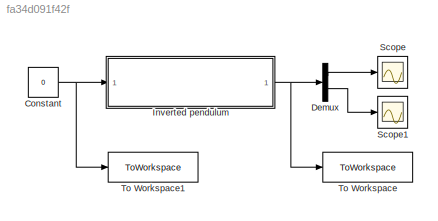
MODEL slx_fa34d091f42f
KIND model
CONFIG AbsTol = auto
CONFIG EnableMultiTasking = off
CONFIG FixedStep = 0.01
CONFIG MaxStep = auto
CONFIG MinStep = auto
CONFIG RelTol = 1e-3
CONFIG SampleTimeConstraint = Unconstrained
CONFIG SolverName = FixedStepAuto
CONFIG StartTime = 0.0
CONFIG StopTime = 20
WORKSPACE source: mxarray member
WORKSPACE M = 2.4
WORKSPACE dtheta0 = 0
WORKSPACE dx0 = 0
WORKSPACE g = 9.8
WORKSPACE l = 0.36
WORKSPACE m = 0.23
WORKSPACE theta0 = 10
WORKSPACE x0 = 0
BLOCK [Constant] Constant
  Value = 0
BLOCK [Demux] Demux
  Outputs = 2
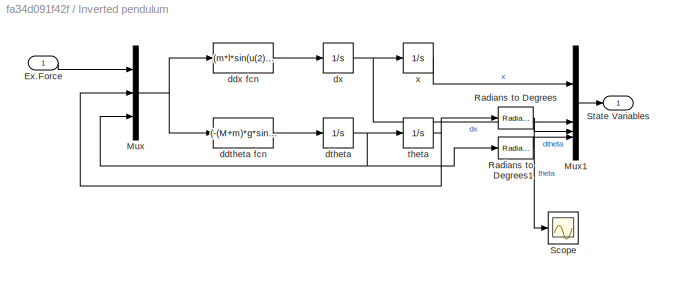
BLOCK [SubSystem] Inverted pendulum
BLOCK [Inport] Inverted pendulum/Ex.Force
BLOCK [Mux] Inverted pendulum/Mux
  DisplayOption = bar
  Inputs = 3
BLOCK [Mux] Inverted pendulum/Mux1
  DisplayOption = bar
BLOCK [Reference] Inverted pendulum/Radians to Degrees  REF=simulink_extras/Transformations/Radians
to Degrees
  SourceBlock = simulink_extras/Transformations/Radians\nto Degrees
  SourceType = RadiansToDegrees
BLOCK [Reference] Inverted pendulum/Radians to Degrees1  REF=simulink_extras/Transformations/Radians
to Degrees
  SourceBlock = simulink_extras/Transformations/Radians\nto Degrees
  SourceType = RadiansToDegrees
BLOCK [Scope] Inverted pendulum/Scope
  ActiveDisplayYMaximum = 363.79002341167381
  ActiveDisplayYMinimum = 10.426959122130228
  DataLoggingVariableName = ScopeData2
  Floating = off
  GraphicalSettings = {"AxesScalingProperties":{"AlignXAxis":"Center","AlignYAxis":"Center","AutoScaleXAxisLimits":false,"AxesScaling":"Manual","AxesScalingNumUpdates":10,"ExpandOnly":true,"ScaleAxesLimitsAtStop":false,"XAxisDataRange":100,"YAxisDataRange":80},"DisplayProperties":{"ColorOrder":["auto","auto","auto","auto","auto","auto","auto","auto","auto","auto","auto","auto","auto","auto","auto","auto","auto","auto",...<+1900ch>
  MultipleDisplayCache = [{"MaxYLimMag":392.48617441917884,"MaxYLimReal":363.79002341167381,"MinYLimMag":0,"MinYLimReal":10.426959122130228,"PlotAsMagnitudePhase":false,"ShowGrid":true,"ShowLegend":false,"Title":"%<SignalLabel>","YLabel":""}]
  NumInputPorts = 1
  ScopeFrameLocation = window
  WasSavedAsWebScope = on
  WindowPosition = [488.000000,222.000000,560.000000,420.000000,]
BLOCK [Outport] Inverted pendulum/State Variables
BLOCK [Fcn] Inverted pendulum/ddtheta fcn
  Expr = (-(M+m)*g*sin(u(2)) + m*l*cos(u(2))*sin(u(2))*u(3)^2 + u*cos(u(1)) )/(m*l*cos(u(2))^2 - (M+m)*l)
BLOCK [Fcn] Inverted pendulum/ddx fcn
  Expr = (m*l*sin(u(2))*u(3)^2-m*g*cos(u(2))*sin(u(2)) + u(1))/(M+m*sin(u(2))^2)
BLOCK [Integrator] Inverted pendulum/dtheta
  InitialCondition = deg2rad(dtheta0)
BLOCK [Integrator] Inverted pendulum/dx
  InitialCondition = dx0
BLOCK [Integrator] Inverted pendulum/theta
  InitialCondition = deg2rad(theta0)
BLOCK [Integrator] Inverted pendulum/x
  InitialCondition = x0
BLOCK [Scope] Scope
  ActiveDisplayYMaximum = 0.077368836901970342
  ActiveDisplayYMinimum = -0.035401349326130031
  Floating = off
  GraphicalSettings = {"Style":{"BackgroundColor":[0.12941176470588237,0.12941176470588237,0.12941176470588237],"AxesColor":[0.07058823529411765,0.07058823529411765,0.07058823529411765],"LabelsColor":[0.8509803921568627,0.8509803921568627,0.8509803921568627],"PreserveColors":false,"Visible":[true,true],"LineStyle":["-","-"],"LineWidth":[1.5,1.5],"BarWidth":[0.9,0.9],"LineColor":["auto","auto"],"LineFaceAlpha":[1,1],"Li...<+2124ch>
  LayoutDimensionsString = [1,1]
  MultipleDisplayCache = [{"MaxYLimMag":0.56593974246722034,"MaxYLimReal":0.077368836901970342,"MinYLimMag":0,"MinYLimReal":-0.035401349326130031,"PlotAsMagnitudePhase":false,"ShowGrid":true,"ShowLegend":true,"Title":"%<SignalLabel>","YLabel":""}]
  NumInputPorts = 1
  ScopeFrameLocation = window
  ShowLegend = on
  WasSavedAsWebScope = on
  WindowPosition = [0.000000,36.000000,1536.000000,793.000000,]
BLOCK [Scope] Scope1
  ActiveDisplayYMaximum = 550.49497509144385
  ActiveDisplayYMinimum = -505.63160204543135
  DataLoggingVariableName = ScopeData1
  Floating = off
  GraphicalSettings = {"Style":{"BackgroundColor":[0.12941176470588237,0.12941176470588237,0.12941176470588237],"AxesColor":[0.07058823529411765,0.07058823529411765,0.07058823529411765],"LabelsColor":[0.8509803921568627,0.8509803921568627,0.8509803921568627],"PreserveColors":false,"Visible":[true,true],"LineStyle":["-","-"],"LineWidth":[1.5,1.5],"BarWidth":[0.9,0.9],"LineColor":["auto","auto"],"LineFaceAlpha":[1,1],"Li...<+2112ch>
  LayoutDimensionsString = [1,1]
  MultipleDisplayCache = [{"MaxYLimMag":5.9000040305378,"MaxYLimReal":550.49497509144385,"MinYLimMag":0,"MinYLimReal":-505.63160204543135,"PlotAsMagnitudePhase":false,"ShowGrid":true,"ShowLegend":true,"Title":"%<SignalLabel>","YLabel":""}]
  NumInputPorts = 1
  ScopeFrameLocation = window
  ShowLegend = on
  WasSavedAsWebScope = on
  WindowPosition = [0.000000,36.000000,1536.000000,793.000000,]
BLOCK [ToWorkspace] To Workspace
  FixptAsFi = on
  MaxDataPoints = inf
  SampleTime = -1
  SaveFormat = Timeseries
  VariableName = var
BLOCK [ToWorkspace] To Workspace1
  FixptAsFi = on
  MaxDataPoints = inf
  SampleTime = -1
  SaveFormat = Timeseries
  VariableName = exF
NET Constant:1 -> Inverted pendulum:1, To Workspace1:1
LINE Demux:1 -> Scope:1
LINE Demux:2 -> Scope1:1
LINE Inverted pendulum/Ex.Force:1 -> Inverted pendulum/Mux:1
LINE Inverted pendulum/Mux1:1 -> Inverted pendulum/State Variables:1
NET Inverted pendulum/Mux:1 -> Inverted pendulum/ddtheta fcn:1, Inverted pendulum/ddx fcn:1
LINE Inverted pendulum/Radians to Degrees1:1 -> Inverted pendulum/Mux1:4
NET Inverted pendulum/Radians to Degrees:1 -> Inverted pendulum/Mux1:3, Inverted pendulum/Scope:1
LINE Inverted pendulum/ddtheta fcn:1 -> Inverted pendulum/dtheta:1
LINE Inverted pendulum/ddx fcn:1 -> Inverted pendulum/dx:1
NET Inverted pendulum/dtheta:1 -> Inverted pendulum/Mux:3, Inverted pendulum/Radians to Degrees1:1, Inverted pendulum/theta:1
NET Inverted pendulum/dx:1 -> Inverted pendulum/Mux1:2, Inverted pendulum/x:1
NET Inverted pendulum/theta:1 -> Inverted pendulum/Mux:2, Inverted pendulum/Radians to Degrees:1
LINE Inverted pendulum/x:1 -> Inverted pendulum/Mux1:1
NET Inverted pendulum:1 -> Demux:1, To Workspace:1
note: NET lines group one-source signal fan-out (src -> all destinations, sorted); 1:1 wires keep LINE
